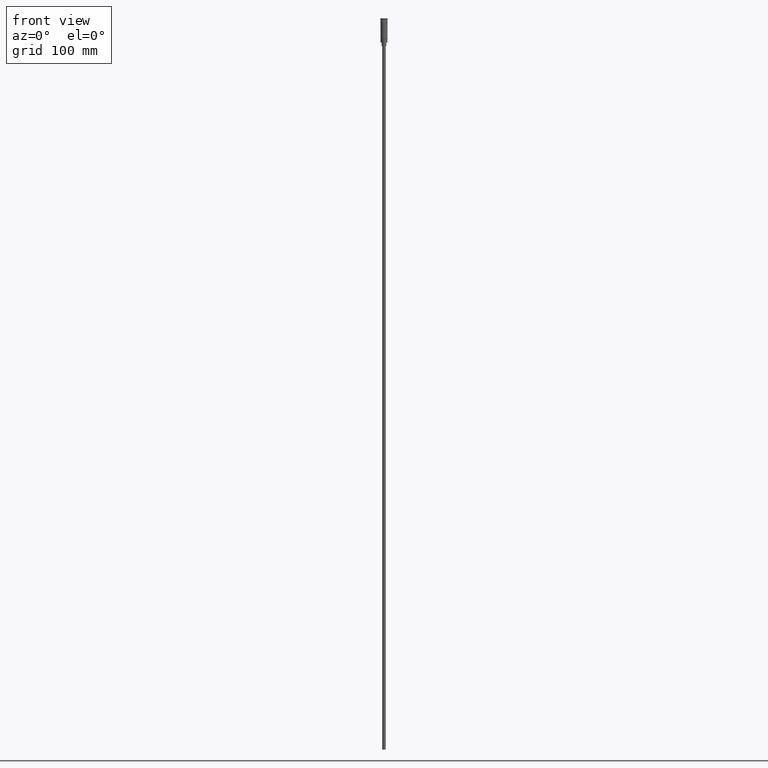
[diagram: clean part render]
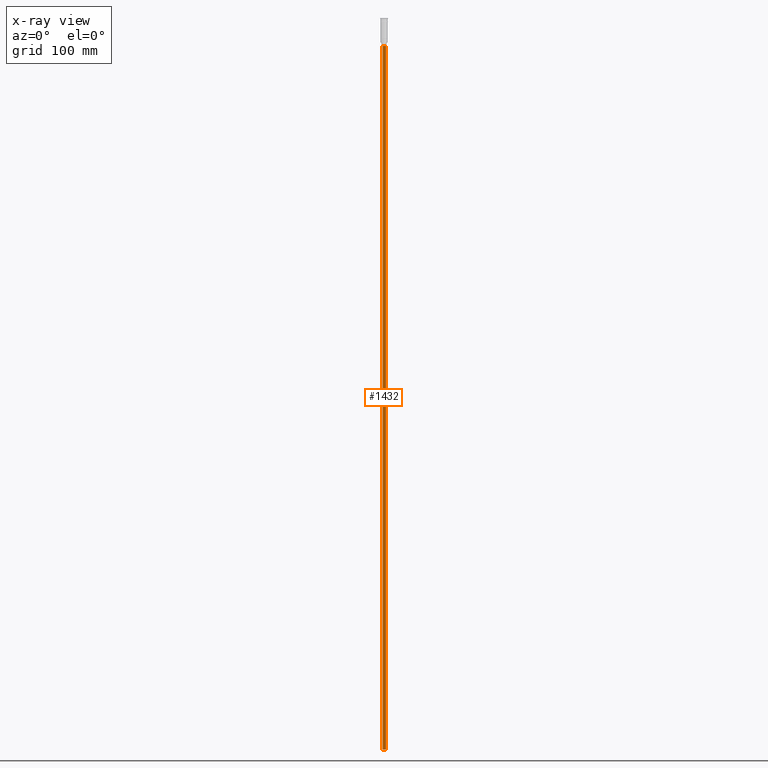
[diagram: x-ray — body ghosted, one internal face saturated and labeled with its STEP entity id]
A machine part, front view, then the same camera in x-ray: the body is ghosted and one INTERNAL B-rep face — a face not visible from any outside direction — is saturated and labeled: STEP entity #1432.
In plain terms, the highlighted cylindrical surface (edge-blend (fillet) strip) has radius 1.5 mm, axis along (-0, -0, 1).
Its self-contained STEP definition (entity closure, byte-faithful):
#88 = CARTESIAN_POINT ( 'NONE',  ( 1.500000000000000222, 0.000000000000000000, -620.4999999999998863 ) ) ;
#95 = LINE ( 'NONE', #821, #417 ) ;
#107 = DIRECTION ( 'NONE',  ( -0.000000000000000000, -0.000000000000000000, 1.000000000000000000 ) ) ;
#167 = CYLINDRICAL_SURFACE ( 'NONE', #555, 1.500000000000000222 ) ;
#249 = CARTESIAN_POINT ( 'NONE',  ( -1.500000000000000222, 1.836970198721030181E-16, -23.50000000000000000 ) ) ;
#270 = CARTESIAN_POINT ( 'NONE',  ( 1.500000000000000222, 0.000000000000000000, -620.4999999999998863 ) ) ;
#314 = CIRCLE ( 'NONE', #1431, 1.500000000000000222 ) ;
#329 = CARTESIAN_POINT ( 'NONE',  ( 1.500000000000000222, 0.000000000000000000, -23.50000000000000000 ) ) ;
#417 = VECTOR ( 'NONE', #1211, 1000.000000000000000 ) ;
#422 = VERTEX_POINT ( 'NONE', #249 ) ;
#427 = CARTESIAN_POINT ( 'NONE',  ( 0.000000000000000000, 0.000000000000000000, -23.50000000000000000 ) ) ;
#530 = DIRECTION ( 'NONE',  ( 1.000000000000000000, 0.000000000000000000, 0.000000000000000000 ) ) ;
#555 = AXIS2_PLACEMENT_3D ( 'NONE', #649, #904, #530 ) ;
#608 = EDGE_LOOP ( 'NONE', ( #692, #1209, #682, #1267 ) ) ;
#649 = CARTESIAN_POINT ( 'NONE',  ( 0.000000000000000000, 0.000000000000000000, -620.4999999999998863 ) ) ;
#682 = ORIENTED_EDGE ( 'NONE', *, *, #1403, .T. ) ;
#692 = ORIENTED_EDGE ( 'NONE', *, *, #848, .F. ) ;
#747 = EDGE_CURVE ( 'NONE', #1245, #422, #95, .T. ) ;
#759 = VERTEX_POINT ( 'NONE', #329 ) ;
#769 = CARTESIAN_POINT ( 'NONE',  ( -1.500000000000000222, 1.836970198721030181E-16, -620.4999999999998863 ) ) ;
#789 = EDGE_CURVE ( 'NONE', #1276, #759, #980, .T. ) ;
#821 = CARTESIAN_POINT ( 'NONE',  ( -1.500000000000000222, 1.836970198721030181E-16, -620.4999999999998863 ) ) ;
#848 = EDGE_CURVE ( 'NONE', #1245, #1276, #314, .T. ) ;
#904 = DIRECTION ( 'NONE',  ( -0.000000000000000000, -0.000000000000000000, 1.000000000000000000 ) ) ;
#925 = DIRECTION ( 'NONE',  ( 0.000000000000000000, 0.000000000000000000, -1.000000000000000000 ) ) ;
#980 = LINE ( 'NONE', #88, #1045 ) ;
#1017 = DIRECTION ( 'NONE',  ( -1.000000000000000000, 0.000000000000000000, 0.000000000000000000 ) ) ;
#1045 = VECTOR ( 'NONE', #107, 1000.000000000000000 ) ;
#1126 = DIRECTION ( 'NONE',  ( 0.000000000000000000, 0.000000000000000000, -1.000000000000000000 ) ) ;
#1209 = ORIENTED_EDGE ( 'NONE', *, *, #747, .T. ) ;
#1211 = DIRECTION ( 'NONE',  ( -0.000000000000000000, -0.000000000000000000, 1.000000000000000000 ) ) ;
#1245 = VERTEX_POINT ( 'NONE', #769 ) ;
#1261 = AXIS2_PLACEMENT_3D ( 'NONE', #427, #925, #1530 ) ;
#1267 = ORIENTED_EDGE ( 'NONE', *, *, #789, .F. ) ;
#1276 = VERTEX_POINT ( 'NONE', #270 ) ;
#1403 = EDGE_CURVE ( 'NONE', #422, #759, #1569, .T. ) ;
#1414 = FACE_OUTER_BOUND ( 'NONE', #608, .T. ) ;
#1431 = AXIS2_PLACEMENT_3D ( 'NONE', #1477, #1126, #1017 ) ;
#1432 = ADVANCED_FACE ( 'NONE', ( #1414 ), #167, .T. ) ;
#1477 = CARTESIAN_POINT ( 'NONE',  ( 0.000000000000000000, 0.000000000000000000, -620.4999999999998863 ) ) ;
#1530 = DIRECTION ( 'NONE',  ( -1.000000000000000000, 0.000000000000000000, 0.000000000000000000 ) ) ;
#1569 = CIRCLE ( 'NONE', #1261, 1.500000000000000222 ) ;